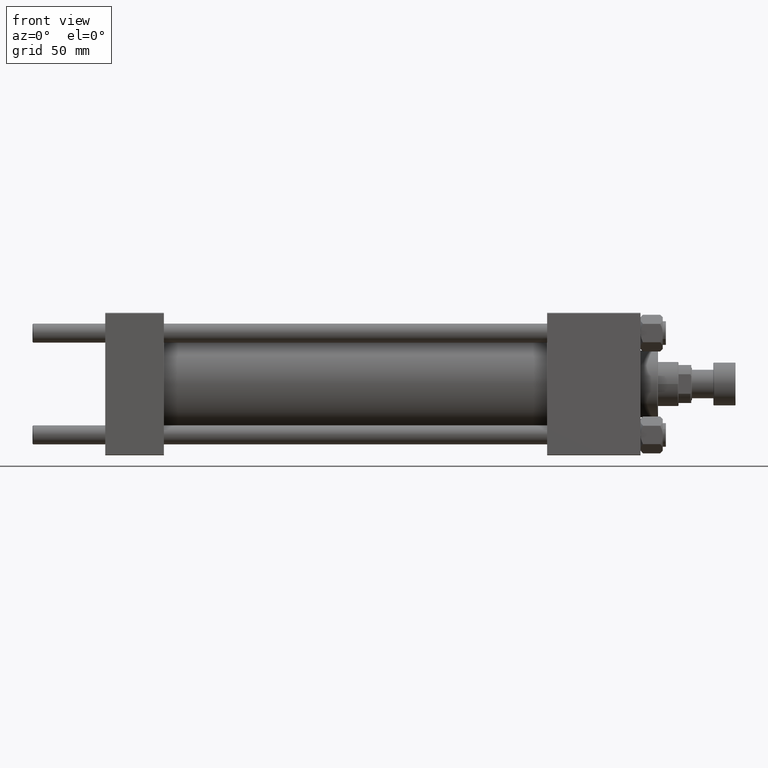
[diagram: clean part render]
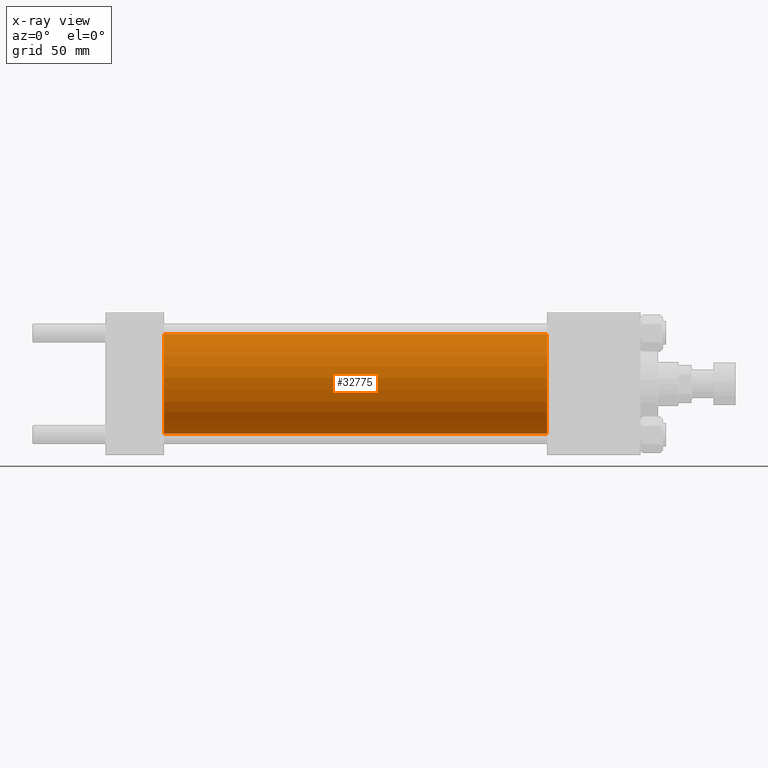
[diagram: x-ray — body ghosted, one internal face saturated and labeled with its STEP entity id]
A machine part, front view, then the same camera in x-ray: the body is ghosted and one INTERNAL B-rep face — a face not visible from any outside direction — is saturated and labeled: STEP entity #32775.
In plain terms, the highlighted cylindrical surface (partial cylindrical patch) has radius 31.5 mm, axis along (-1, -0, -0).
Its self-contained STEP definition (entity closure, byte-faithful):
#3741 = DIRECTION ( 'NONE',  ( 1.000000000000000000, 0.000000000000000000, 0.000000000000000000 ) ) ;
#5148 = DIRECTION ( 'NONE',  ( 0.000000000000000000, 0.000000000000000000, -1.000000000000000000 ) ) ;
#7253 = CARTESIAN_POINT ( 'NONE',  ( 37.00000000000000000, 3.857637417314162689E-15, -31.50000000000000000 ) ) ;
#7298 = ORIENTED_EDGE ( 'NONE', *, *, #43870, .F. ) ;
#7717 = ORIENTED_EDGE ( 'NONE', *, *, #13388, .T. ) ;
#7954 = CARTESIAN_POINT ( 'NONE',  ( 278.9999999999999432, 0.000000000000000000, 31.50000000000000000 ) ) ;
#9425 = CIRCLE ( 'NONE', #15086, 31.50000000000000000 ) ;
#12419 = DIRECTION ( 'NONE',  ( 0.000000000000000000, 0.000000000000000000, 1.000000000000000000 ) ) ;
#13239 = AXIS2_PLACEMENT_3D ( 'NONE', #35870, #16311, #5148 ) ;
#13388 = EDGE_CURVE ( 'NONE', #28689, #13659, #24024, .T. ) ;
#13659 = VERTEX_POINT ( 'NONE', #7253 ) ;
#15086 = AXIS2_PLACEMENT_3D ( 'NONE', #50214, #3741, #22779 ) ;
#15840 = EDGE_CURVE ( 'NONE', #28862, #34322, #42227, .T. ) ;
#16311 = DIRECTION ( 'NONE',  ( 1.000000000000000000, 0.000000000000000000, 0.000000000000000000 ) ) ;
#17264 = CARTESIAN_POINT ( 'NONE',  ( 278.9999999999999432, 0.000000000000000000, 31.50000000000000000 ) ) ;
#19366 = CARTESIAN_POINT ( 'NONE',  ( 37.00000000000000000, 0.000000000000000000, 31.50000000000000000 ) ) ;
#20036 = CARTESIAN_POINT ( 'NONE',  ( 278.9999999999999432, 0.000000000000000000, 0.000000000000000000 ) ) ;
#22209 = EDGE_CURVE ( 'NONE', #28862, #28689, #9425, .T. ) ;
#22779 = DIRECTION ( 'NONE',  ( 0.000000000000000000, 0.000000000000000000, -1.000000000000000000 ) ) ;
#24024 = LINE ( 'NONE', #40278, #33086 ) ;
#24188 = AXIS2_PLACEMENT_3D ( 'NONE', #20036, #35534, #12419 ) ;
#28689 = VERTEX_POINT ( 'NONE', #47507 ) ;
#28862 = VERTEX_POINT ( 'NONE', #17264 ) ;
#32775 = ADVANCED_FACE ( 'NONE', ( #39352 ), #47221, .F. ) ;
#33086 = VECTOR ( 'NONE', #48145, 1000.000000000000000 ) ;
#34322 = VERTEX_POINT ( 'NONE', #19366 ) ;
#35125 = CIRCLE ( 'NONE', #13239, 31.50000000000000000 ) ;
#35534 = DIRECTION ( 'NONE',  ( -1.000000000000000000, -0.000000000000000000, -0.000000000000000000 ) ) ;
#35870 = CARTESIAN_POINT ( 'NONE',  ( 37.00000000000000000, 0.000000000000000000, 0.000000000000000000 ) ) ;
#38328 = EDGE_LOOP ( 'NONE', ( #46862, #7717, #7298, #46437 ) ) ;
#38677 = DIRECTION ( 'NONE',  ( -1.000000000000000000, -0.000000000000000000, -0.000000000000000000 ) ) ;
#39352 = FACE_OUTER_BOUND ( 'NONE', #38328, .T. ) ;
#40278 = CARTESIAN_POINT ( 'NONE',  ( 278.9999999999999432, 3.857637417314162689E-15, -31.50000000000000000 ) ) ;
#42227 = LINE ( 'NONE', #7954, #43369 ) ;
#43369 = VECTOR ( 'NONE', #38677, 1000.000000000000000 ) ;
#43870 = EDGE_CURVE ( 'NONE', #34322, #13659, #35125, .T. ) ;
#46437 = ORIENTED_EDGE ( 'NONE', *, *, #15840, .F. ) ;
#46862 = ORIENTED_EDGE ( 'NONE', *, *, #22209, .T. ) ;
#47221 = CYLINDRICAL_SURFACE ( 'NONE', #24188, 31.50000000000000000 ) ;
#47507 = CARTESIAN_POINT ( 'NONE',  ( 278.9999999999999432, 3.857637417314162689E-15, -31.50000000000000000 ) ) ;
#48145 = DIRECTION ( 'NONE',  ( -1.000000000000000000, -0.000000000000000000, -0.000000000000000000 ) ) ;
#50214 = CARTESIAN_POINT ( 'NONE',  ( 278.9999999999999432, 0.000000000000000000, 0.000000000000000000 ) ) ;